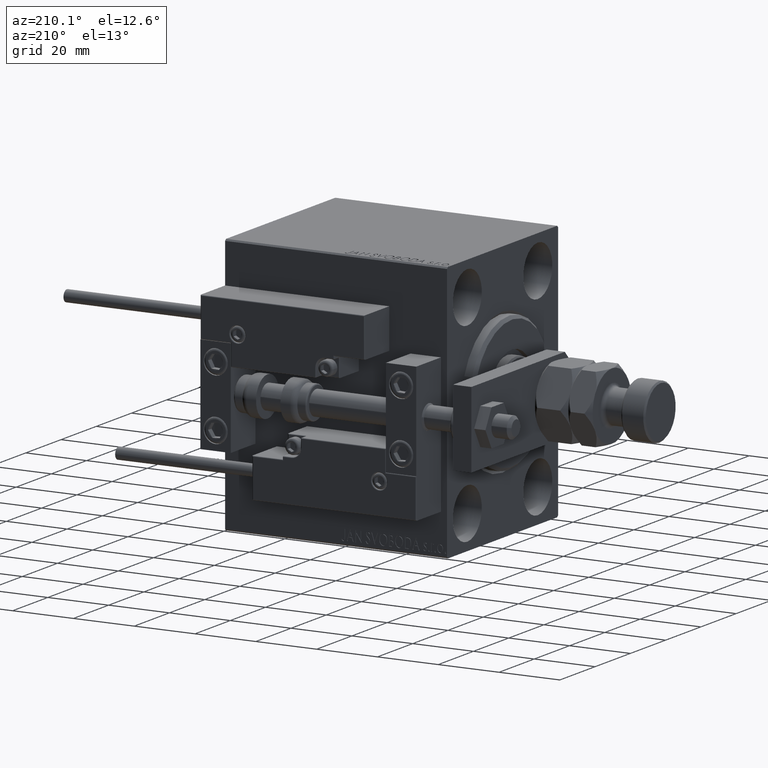
[diagram: clean part render]
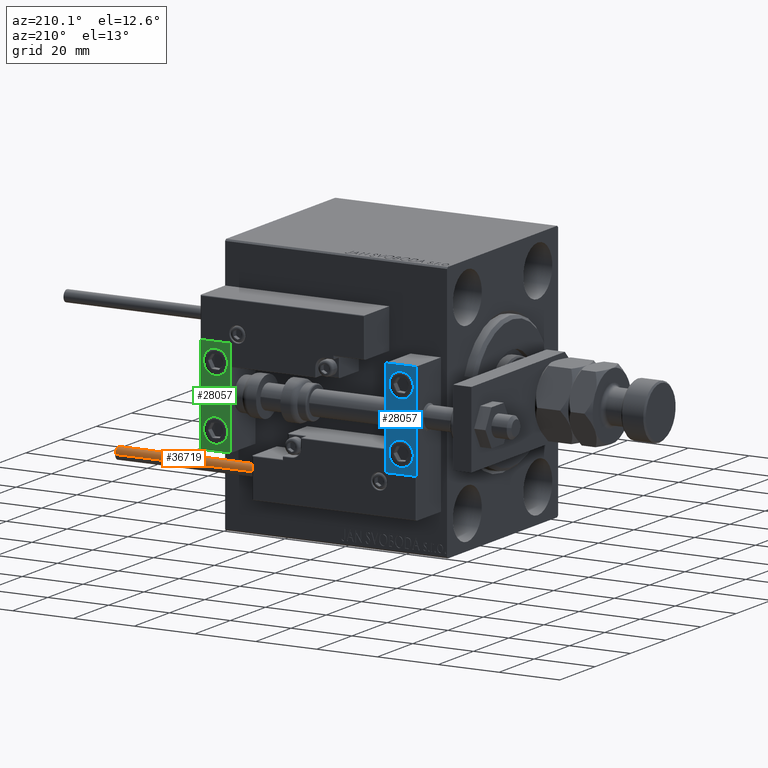
[diagram: same view with three faces highlighted in distinct colors, each labeled with its STEP entity id]
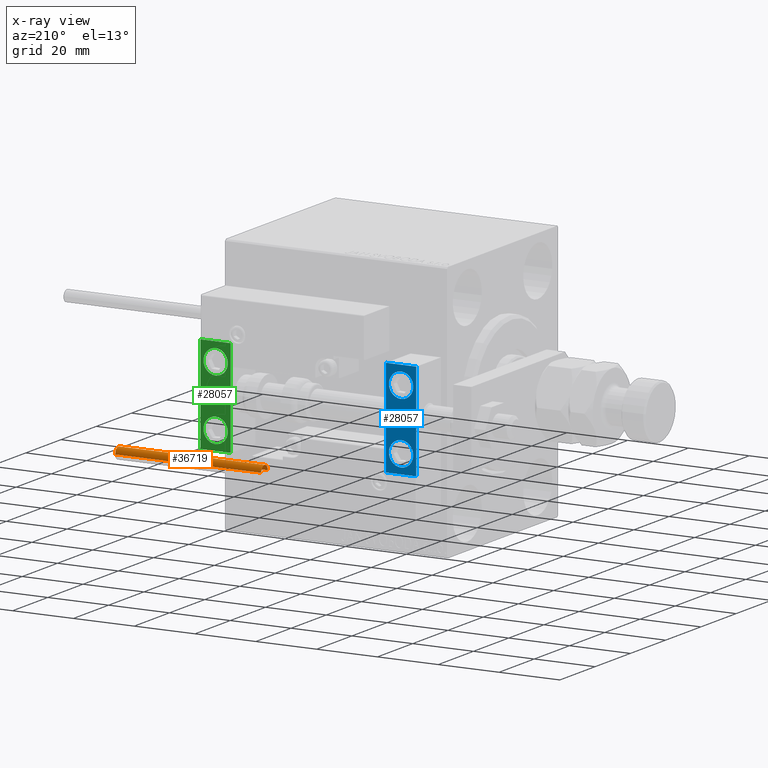
[diagram: x-ray of the same camera — body ghosted, the three highlighted faces saturated]
A machine part, auxiliary view with three faces highlighted in distinct colors.
The next image is the same camera in x-ray (body ghosted, the three faces saturated) — at least one of them is partly hidden behind the body in this view.
Their STEP definitions:

[orange] entity #36719 — the highlighted cylindrical surface (edge-blend (fillet) strip) has radius 1.9 mm, axis along (-1, 0, 0).
#172 = CYLINDRICAL_SURFACE ( 'NONE', #22427, 1.899999999999999467 ) ;
#1898 = CARTESIAN_POINT ( 'NONE',  ( 1.899999999999999467, 2.326828918379970872E-16, 48.00000000000000000 ) ) ;
#2413 = AXIS2_PLACEMENT_3D ( 'NONE', #4970, #36924, #16985 ) ;
#2483 = DIRECTION ( 'NONE',  ( -0.000000000000000000, -0.000000000000000000, -1.000000000000000000 ) ) ;
#3200 = VERTEX_POINT ( 'NONE', #51712 ) ;
#4970 = CARTESIAN_POINT ( 'NONE',  ( 0.000000000000000000, 0.000000000000000000, 48.00000000000000000 ) ) ;
#5897 = CARTESIAN_POINT ( 'NONE',  ( -1.899999999999999467, 0.000000000000000000, 48.00000000000000000 ) ) ;
#11169 = ORIENTED_EDGE ( 'NONE', *, *, #33833, .F. ) ;
#13351 = AXIS2_PLACEMENT_3D ( 'NONE', #24035, #47854, #35600 ) ;
#15622 = VECTOR ( 'NONE', #2483, 1000.000000000000000 ) ;
#16500 = VERTEX_POINT ( 'NONE', #37904 ) ;
#16985 = DIRECTION ( 'NONE',  ( 1.000000000000000000, 0.000000000000000000, 0.000000000000000000 ) ) ;
#18885 = CARTESIAN_POINT ( 'NONE',  ( -1.899999999999999467, 0.000000000000000000, 0.000000000000000000 ) ) ;
#19815 = FACE_OUTER_BOUND ( 'NONE', #41947, .T. ) ;
#20325 = DIRECTION ( 'NONE',  ( -1.000000000000000000, 0.000000000000000000, 0.000000000000000000 ) ) ;
#22427 = AXIS2_PLACEMENT_3D ( 'NONE', #35805, #44679, #20325 ) ;
#24035 = CARTESIAN_POINT ( 'NONE',  ( 0.000000000000000000, 0.000000000000000000, 0.000000000000000000 ) ) ;
#24475 = CARTESIAN_POINT ( 'NONE',  ( 1.899999999999999467, 2.326828918379970872E-16, 48.00000000000000000 ) ) ;
#24540 = VERTEX_POINT ( 'NONE', #18885 ) ;
#25146 = ORIENTED_EDGE ( 'NONE', *, *, #38459, .F. ) ;
#30003 = CIRCLE ( 'NONE', #2413, 1.899999999999999467 ) ;
#32093 = ORIENTED_EDGE ( 'NONE', *, *, #43797, .T. ) ;
#33833 = EDGE_CURVE ( 'NONE', #3200, #24540, #34681, .T. ) ;
#34681 = LINE ( 'NONE', #5897, #15622 ) ;
#35156 = VECTOR ( 'NONE', #40211, 1000.000000000000000 ) ;
#35600 = DIRECTION ( 'NONE',  ( 1.000000000000000000, 0.000000000000000000, 0.000000000000000000 ) ) ;
#35805 = CARTESIAN_POINT ( 'NONE',  ( 0.000000000000000000, 0.000000000000000000, 48.00000000000000000 ) ) ;
#35943 = CIRCLE ( 'NONE', #13351, 1.899999999999999467 ) ;
#36719 = ADVANCED_FACE ( 'NONE', ( #19815 ), #172, .T. ) ;
#36924 = DIRECTION ( 'NONE',  ( 0.000000000000000000, 0.000000000000000000, 1.000000000000000000 ) ) ;
#37904 = CARTESIAN_POINT ( 'NONE',  ( 1.899999999999999467, 2.326828918379970872E-16, 0.000000000000000000 ) ) ;
#38459 = EDGE_CURVE ( 'NONE', #42518, #3200, #30003, .T. ) ;
#39716 = ORIENTED_EDGE ( 'NONE', *, *, #41616, .T. ) ;
#40211 = DIRECTION ( 'NONE',  ( -0.000000000000000000, -0.000000000000000000, -1.000000000000000000 ) ) ;
#41616 = EDGE_CURVE ( 'NONE', #42518, #16500, #44123, .T. ) ;
#41947 = EDGE_LOOP ( 'NONE', ( #25146, #39716, #32093, #11169 ) ) ;
#42518 = VERTEX_POINT ( 'NONE', #1898 ) ;
#43797 = EDGE_CURVE ( 'NONE', #16500, #24540, #35943, .T. ) ;
#44123 = LINE ( 'NONE', #24475, #35156 ) ;
#44679 = DIRECTION ( 'NONE',  ( -0.000000000000000000, -0.000000000000000000, -1.000000000000000000 ) ) ;
#47854 = DIRECTION ( 'NONE',  ( 0.000000000000000000, 0.000000000000000000, 1.000000000000000000 ) ) ;
#51712 = CARTESIAN_POINT ( 'NONE',  ( -1.899999999999999467, 0.000000000000000000, 48.00000000000000000 ) ) ;

[blue] entity #28057 — the highlighted planar face has unit normal (-0, 1, -0).
#872 = VECTOR ( 'NONE', #24472, 1000.000000000000000 ) ;
#995 = EDGE_CURVE ( 'NONE', #45055, #36600, #21932, .T. ) ;
#3178 = DIRECTION ( 'NONE',  ( 1.848892746611746419E-32, -1.000000000000000000, 6.616381192988677562E-17 ) ) ;
#3488 = CARTESIAN_POINT ( 'NONE',  ( 10.00000000000000000, 7.000000000000000000, -16.00000000000000711 ) ) ;
#3699 = CARTESIAN_POINT ( 'NONE',  ( 5.000000000000000888, 7.000000000000000888, 10.00000000000000178 ) ) ;
#5652 = ORIENTED_EDGE ( 'NONE', *, *, #10791, .F. ) ;
#7124 = ORIENTED_EDGE ( 'NONE', *, *, #25570, .T. ) ;
#7168 = DIRECTION ( 'NONE',  ( 0.000000000000000000, 0.000000000000000000, -1.000000000000000000 ) ) ;
#7782 = VERTEX_POINT ( 'NONE', #13231 ) ;
#8086 = ORIENTED_EDGE ( 'NONE', *, *, #24144, .F. ) ;
#8573 = VERTEX_POINT ( 'NONE', #45748 ) ;
#9835 = ORIENTED_EDGE ( 'NONE', *, *, #22408, .T. ) ;
#9905 = FACE_OUTER_BOUND ( 'NONE', #43196, .T. ) ;
#9915 = CARTESIAN_POINT ( 'NONE',  ( 10.00000000000000000, 7.000000000000000000, -16.00000000000000711 ) ) ;
#10791 = EDGE_CURVE ( 'NONE', #7782, #27354, #51371, .T. ) ;
#12175 = CARTESIAN_POINT ( 'NONE',  ( 10.00000000000000000, 7.000000000000000000, 15.99999999999999289 ) ) ;
#13162 = CARTESIAN_POINT ( 'NONE',  ( 10.00000000000000000, 7.000000000000000000, 15.99999999999999289 ) ) ;
#13231 = CARTESIAN_POINT ( 'NONE',  ( 5.000000000000000888, 6.999999999999999112, -6.000000000000000888 ) ) ;
#13261 = AXIS2_PLACEMENT_3D ( 'NONE', #3699, #3178, #31706 ) ;
#14217 = VECTOR ( 'NONE', #14231, 1000.000000000000000 ) ;
#14231 = DIRECTION ( 'NONE',  ( -1.000000000000000000, -0.000000000000000000, -0.000000000000000000 ) ) ;
#16222 = ORIENTED_EDGE ( 'NONE', *, *, #44868, .F. ) ;
#18008 = FACE_BOUND ( 'NONE', #40883, .T. ) ;
#18816 = AXIS2_PLACEMENT_3D ( 'NONE', #23098, #39099, #51082 ) ;
#19593 = VERTEX_POINT ( 'NONE', #44953 ) ;
#20282 = AXIS2_PLACEMENT_3D ( 'NONE', #37859, #26303, #29989 ) ;
#21488 = DIRECTION ( 'NONE',  ( 0.000000000000000000, 1.000000000000000000, -6.065466699219605527E-17 ) ) ;
#21690 = VECTOR ( 'NONE', #7168, 1000.000000000000000 ) ;
#21779 = LINE ( 'NONE', #13162, #50627 ) ;
#21932 = CIRCLE ( 'NONE', #20282, 4.000000000000000000 ) ;
#21943 = FACE_BOUND ( 'NONE', #42011, .T. ) ;
#22408 = EDGE_CURVE ( 'NONE', #36600, #45055, #39205, .T. ) ;
#23098 = CARTESIAN_POINT ( 'NONE',  ( 5.000000000000000888, 6.999999999999999112, -10.00000000000000178 ) ) ;
#23367 = LINE ( 'NONE', #3488, #14217 ) ;
#24144 = EDGE_CURVE ( 'NONE', #32697, #19593, #26554, .T. ) ;
#24243 = CIRCLE ( 'NONE', #33503, 4.000000000000000888 ) ;
#24472 = DIRECTION ( 'NONE',  ( -1.000000000000000000, -0.000000000000000000, -0.000000000000000000 ) ) ;
#25520 = CARTESIAN_POINT ( 'NONE',  ( 0.000000000000000000, 7.000000000000000000, 15.99999999999999289 ) ) ;
#25570 = EDGE_CURVE ( 'NONE', #31048, #19593, #23367, .T. ) ;
#26030 = CARTESIAN_POINT ( 'NONE',  ( 5.000000000000001776, 6.999999999999999112, -14.00000000000000178 ) ) ;
#26303 = DIRECTION ( 'NONE',  ( 1.848892746611746419E-32, -1.000000000000000000, 6.616381192988677562E-17 ) ) ;
#26554 = LINE ( 'NONE', #25520, #21690 ) ;
#27354 = VERTEX_POINT ( 'NONE', #26030 ) ;
#27525 = EDGE_CURVE ( 'NONE', #8573, #31048, #21779, .T. ) ;
#28057 = ADVANCED_FACE ( 'NONE', ( #9905, #18008, #21943 ), #37948, .T. ) ;
#28076 = AXIS2_PLACEMENT_3D ( 'NONE', #47045, #42375, #46789 ) ;
#28610 = CARTESIAN_POINT ( 'NONE',  ( 0.000000000000000000, 7.000000000000000000, 15.99999999999999289 ) ) ;
#29858 = ORIENTED_EDGE ( 'NONE', *, *, #27525, .T. ) ;
#29989 = DIRECTION ( 'NONE',  ( 0.000000000000000000, 0.000000000000000000, 1.000000000000000000 ) ) ;
#31048 = VERTEX_POINT ( 'NONE', #9915 ) ;
#31706 = DIRECTION ( 'NONE',  ( 0.000000000000000000, 0.000000000000000000, 1.000000000000000000 ) ) ;
#32697 = VERTEX_POINT ( 'NONE', #28610 ) ;
#32864 = LINE ( 'NONE', #12175, #872 ) ;
#33297 = DIRECTION ( 'NONE',  ( 0.000000000000000000, 0.000000000000000000, 1.000000000000000000 ) ) ;
#33503 = AXIS2_PLACEMENT_3D ( 'NONE', #36979, #21488, #33297 ) ;
#34771 = CARTESIAN_POINT ( 'NONE',  ( 5.000000000000000888, 7.000000000000000888, 14.00000000000000178 ) ) ;
#36600 = VERTEX_POINT ( 'NONE', #34771 ) ;
#36979 = CARTESIAN_POINT ( 'NONE',  ( 5.000000000000000888, 6.999999999999999112, -10.00000000000000178 ) ) ;
#37778 = DIRECTION ( 'NONE',  ( 0.000000000000000000, 0.000000000000000000, -1.000000000000000000 ) ) ;
#37859 = CARTESIAN_POINT ( 'NONE',  ( 5.000000000000000888, 7.000000000000000888, 10.00000000000000178 ) ) ;
#37948 = PLANE ( 'NONE',  #28076 ) ;
#39099 = DIRECTION ( 'NONE',  ( 0.000000000000000000, 1.000000000000000000, -6.065466699219605527E-17 ) ) ;
#39205 = CIRCLE ( 'NONE', #13261, 4.000000000000000000 ) ;
#40883 = EDGE_LOOP ( 'NONE', ( #5652, #16222 ) ) ;
#42011 = EDGE_LOOP ( 'NONE', ( #9835, #43671 ) ) ;
#42194 = EDGE_CURVE ( 'NONE', #8573, #32697, #32864, .T. ) ;
#42375 = DIRECTION ( 'NONE',  ( -0.000000000000000000, 1.000000000000000000, 0.000000000000000000 ) ) ;
#43196 = EDGE_LOOP ( 'NONE', ( #8086, #51765, #29858, #7124 ) ) ;
#43671 = ORIENTED_EDGE ( 'NONE', *, *, #995, .T. ) ;
#44868 = EDGE_CURVE ( 'NONE', #27354, #7782, #24243, .T. ) ;
#44953 = CARTESIAN_POINT ( 'NONE',  ( 0.000000000000000000, 7.000000000000000000, -16.00000000000000711 ) ) ;
#45055 = VERTEX_POINT ( 'NONE', #46343 ) ;
#45748 = CARTESIAN_POINT ( 'NONE',  ( 10.00000000000000000, 7.000000000000000000, 15.99999999999999289 ) ) ;
#46343 = CARTESIAN_POINT ( 'NONE',  ( 5.000000000000001776, 7.000000000000000888, 6.000000000000000888 ) ) ;
#46789 = DIRECTION ( 'NONE',  ( 0.000000000000000000, -0.000000000000000000, 1.000000000000000000 ) ) ;
#47045 = CARTESIAN_POINT ( 'NONE',  ( 10.00000000000000000, 7.000000000000000000, 15.99999999999999289 ) ) ;
#50627 = VECTOR ( 'NONE', #37778, 1000.000000000000000 ) ;
#51082 = DIRECTION ( 'NONE',  ( 0.000000000000000000, 0.000000000000000000, 1.000000000000000000 ) ) ;
#51371 = CIRCLE ( 'NONE', #18816, 4.000000000000000888 ) ;
#51765 = ORIENTED_EDGE ( 'NONE', *, *, #42194, .F. ) ;

[green] entity #28057 — the highlighted planar face has unit normal (0, 1, 0).
#872 = VECTOR ( 'NONE', #24472, 1000.000000000000000 ) ;
#995 = EDGE_CURVE ( 'NONE', #45055, #36600, #21932, .T. ) ;
#3178 = DIRECTION ( 'NONE',  ( 1.848892746611746419E-32, -1.000000000000000000, 6.616381192988677562E-17 ) ) ;
#3488 = CARTESIAN_POINT ( 'NONE',  ( 10.00000000000000000, 7.000000000000000000, -16.00000000000000711 ) ) ;
#3699 = CARTESIAN_POINT ( 'NONE',  ( 5.000000000000000888, 7.000000000000000888, 10.00000000000000178 ) ) ;
#5652 = ORIENTED_EDGE ( 'NONE', *, *, #10791, .F. ) ;
#7124 = ORIENTED_EDGE ( 'NONE', *, *, #25570, .T. ) ;
#7168 = DIRECTION ( 'NONE',  ( 0.000000000000000000, 0.000000000000000000, -1.000000000000000000 ) ) ;
#7782 = VERTEX_POINT ( 'NONE', #13231 ) ;
#8086 = ORIENTED_EDGE ( 'NONE', *, *, #24144, .F. ) ;
#8573 = VERTEX_POINT ( 'NONE', #45748 ) ;
#9835 = ORIENTED_EDGE ( 'NONE', *, *, #22408, .T. ) ;
#9905 = FACE_OUTER_BOUND ( 'NONE', #43196, .T. ) ;
#9915 = CARTESIAN_POINT ( 'NONE',  ( 10.00000000000000000, 7.000000000000000000, -16.00000000000000711 ) ) ;
#10791 = EDGE_CURVE ( 'NONE', #7782, #27354, #51371, .T. ) ;
#12175 = CARTESIAN_POINT ( 'NONE',  ( 10.00000000000000000, 7.000000000000000000, 15.99999999999999289 ) ) ;
#13162 = CARTESIAN_POINT ( 'NONE',  ( 10.00000000000000000, 7.000000000000000000, 15.99999999999999289 ) ) ;
#13231 = CARTESIAN_POINT ( 'NONE',  ( 5.000000000000000888, 6.999999999999999112, -6.000000000000000888 ) ) ;
#13261 = AXIS2_PLACEMENT_3D ( 'NONE', #3699, #3178, #31706 ) ;
#14217 = VECTOR ( 'NONE', #14231, 1000.000000000000000 ) ;
#14231 = DIRECTION ( 'NONE',  ( -1.000000000000000000, -0.000000000000000000, -0.000000000000000000 ) ) ;
#16222 = ORIENTED_EDGE ( 'NONE', *, *, #44868, .F. ) ;
#18008 = FACE_BOUND ( 'NONE', #40883, .T. ) ;
#18816 = AXIS2_PLACEMENT_3D ( 'NONE', #23098, #39099, #51082 ) ;
#19593 = VERTEX_POINT ( 'NONE', #44953 ) ;
#20282 = AXIS2_PLACEMENT_3D ( 'NONE', #37859, #26303, #29989 ) ;
#21488 = DIRECTION ( 'NONE',  ( 0.000000000000000000, 1.000000000000000000, -6.065466699219605527E-17 ) ) ;
#21690 = VECTOR ( 'NONE', #7168, 1000.000000000000000 ) ;
#21779 = LINE ( 'NONE', #13162, #50627 ) ;
#21932 = CIRCLE ( 'NONE', #20282, 4.000000000000000000 ) ;
#21943 = FACE_BOUND ( 'NONE', #42011, .T. ) ;
#22408 = EDGE_CURVE ( 'NONE', #36600, #45055, #39205, .T. ) ;
#23098 = CARTESIAN_POINT ( 'NONE',  ( 5.000000000000000888, 6.999999999999999112, -10.00000000000000178 ) ) ;
#23367 = LINE ( 'NONE', #3488, #14217 ) ;
#24144 = EDGE_CURVE ( 'NONE', #32697, #19593, #26554, .T. ) ;
#24243 = CIRCLE ( 'NONE', #33503, 4.000000000000000888 ) ;
#24472 = DIRECTION ( 'NONE',  ( -1.000000000000000000, -0.000000000000000000, -0.000000000000000000 ) ) ;
#25520 = CARTESIAN_POINT ( 'NONE',  ( 0.000000000000000000, 7.000000000000000000, 15.99999999999999289 ) ) ;
#25570 = EDGE_CURVE ( 'NONE', #31048, #19593, #23367, .T. ) ;
#26030 = CARTESIAN_POINT ( 'NONE',  ( 5.000000000000001776, 6.999999999999999112, -14.00000000000000178 ) ) ;
#26303 = DIRECTION ( 'NONE',  ( 1.848892746611746419E-32, -1.000000000000000000, 6.616381192988677562E-17 ) ) ;
#26554 = LINE ( 'NONE', #25520, #21690 ) ;
#27354 = VERTEX_POINT ( 'NONE', #26030 ) ;
#27525 = EDGE_CURVE ( 'NONE', #8573, #31048, #21779, .T. ) ;
#28057 = ADVANCED_FACE ( 'NONE', ( #9905, #18008, #21943 ), #37948, .T. ) ;
#28076 = AXIS2_PLACEMENT_3D ( 'NONE', #47045, #42375, #46789 ) ;
#28610 = CARTESIAN_POINT ( 'NONE',  ( 0.000000000000000000, 7.000000000000000000, 15.99999999999999289 ) ) ;
#29858 = ORIENTED_EDGE ( 'NONE', *, *, #27525, .T. ) ;
#29989 = DIRECTION ( 'NONE',  ( 0.000000000000000000, 0.000000000000000000, 1.000000000000000000 ) ) ;
#31048 = VERTEX_POINT ( 'NONE', #9915 ) ;
#31706 = DIRECTION ( 'NONE',  ( 0.000000000000000000, 0.000000000000000000, 1.000000000000000000 ) ) ;
#32697 = VERTEX_POINT ( 'NONE', #28610 ) ;
#32864 = LINE ( 'NONE', #12175, #872 ) ;
#33297 = DIRECTION ( 'NONE',  ( 0.000000000000000000, 0.000000000000000000, 1.000000000000000000 ) ) ;
#33503 = AXIS2_PLACEMENT_3D ( 'NONE', #36979, #21488, #33297 ) ;
#34771 = CARTESIAN_POINT ( 'NONE',  ( 5.000000000000000888, 7.000000000000000888, 14.00000000000000178 ) ) ;
#36600 = VERTEX_POINT ( 'NONE', #34771 ) ;
#36979 = CARTESIAN_POINT ( 'NONE',  ( 5.000000000000000888, 6.999999999999999112, -10.00000000000000178 ) ) ;
#37778 = DIRECTION ( 'NONE',  ( 0.000000000000000000, 0.000000000000000000, -1.000000000000000000 ) ) ;
#37859 = CARTESIAN_POINT ( 'NONE',  ( 5.000000000000000888, 7.000000000000000888, 10.00000000000000178 ) ) ;
#37948 = PLANE ( 'NONE',  #28076 ) ;
#39099 = DIRECTION ( 'NONE',  ( 0.000000000000000000, 1.000000000000000000, -6.065466699219605527E-17 ) ) ;
#39205 = CIRCLE ( 'NONE', #13261, 4.000000000000000000 ) ;
#40883 = EDGE_LOOP ( 'NONE', ( #5652, #16222 ) ) ;
#42011 = EDGE_LOOP ( 'NONE', ( #9835, #43671 ) ) ;
#42194 = EDGE_CURVE ( 'NONE', #8573, #32697, #32864, .T. ) ;
#42375 = DIRECTION ( 'NONE',  ( -0.000000000000000000, 1.000000000000000000, 0.000000000000000000 ) ) ;
#43196 = EDGE_LOOP ( 'NONE', ( #8086, #51765, #29858, #7124 ) ) ;
#43671 = ORIENTED_EDGE ( 'NONE', *, *, #995, .T. ) ;
#44868 = EDGE_CURVE ( 'NONE', #27354, #7782, #24243, .T. ) ;
#44953 = CARTESIAN_POINT ( 'NONE',  ( 0.000000000000000000, 7.000000000000000000, -16.00000000000000711 ) ) ;
#45055 = VERTEX_POINT ( 'NONE', #46343 ) ;
#45748 = CARTESIAN_POINT ( 'NONE',  ( 10.00000000000000000, 7.000000000000000000, 15.99999999999999289 ) ) ;
#46343 = CARTESIAN_POINT ( 'NONE',  ( 5.000000000000001776, 7.000000000000000888, 6.000000000000000888 ) ) ;
#46789 = DIRECTION ( 'NONE',  ( 0.000000000000000000, -0.000000000000000000, 1.000000000000000000 ) ) ;
#47045 = CARTESIAN_POINT ( 'NONE',  ( 10.00000000000000000, 7.000000000000000000, 15.99999999999999289 ) ) ;
#50627 = VECTOR ( 'NONE', #37778, 1000.000000000000000 ) ;
#51082 = DIRECTION ( 'NONE',  ( 0.000000000000000000, 0.000000000000000000, 1.000000000000000000 ) ) ;
#51371 = CIRCLE ( 'NONE', #18816, 4.000000000000000888 ) ;
#51765 = ORIENTED_EDGE ( 'NONE', *, *, #42194, .F. ) ;